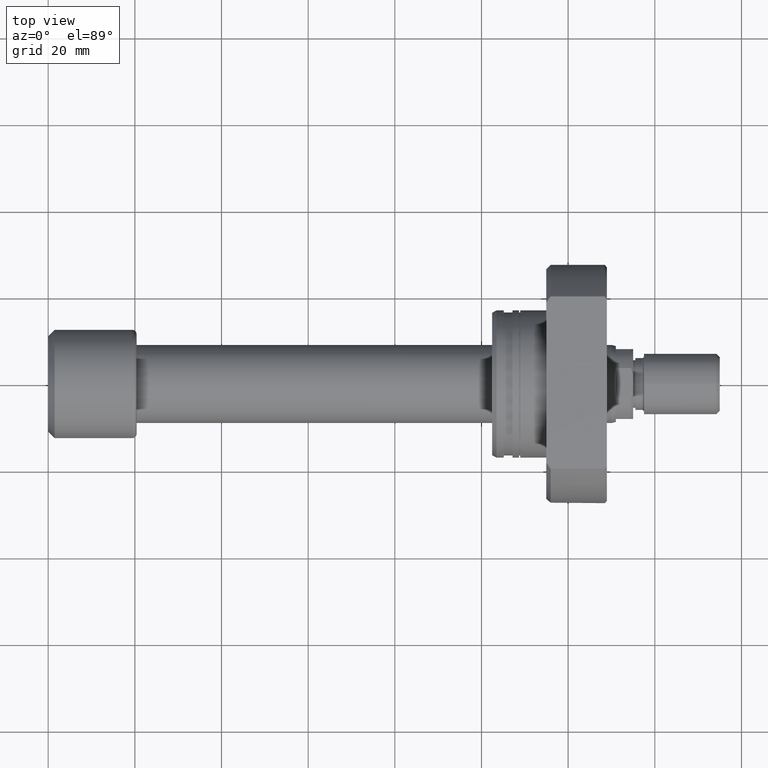
[diagram: clean part render]
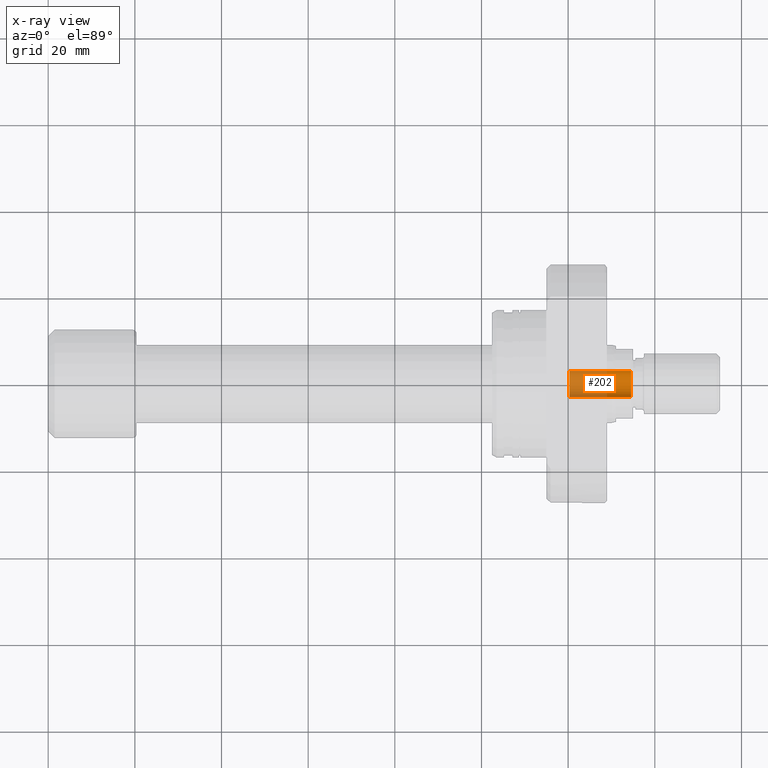
[diagram: x-ray — body ghosted, one internal face saturated and labeled with its STEP entity id]
A machine part, top view, then the same camera in x-ray: the body is ghosted and one INTERNAL B-rep face — a face not visible from any outside direction — is saturated and labeled: STEP entity #202.
In plain terms, the highlighted cylindrical surface (edge-blend (fillet) strip) has radius 3 mm, axis along (1, -0, 0).
Its self-contained STEP definition (entity closure, byte-faithful):
#91 = DIRECTION ( 'NONE',  ( 1.000000000000000000, -1.657264799492235042E-14, 0.000000000000000000 ) ) ;
#94 = AXIS2_PLACEMENT_3D ( 'NONE', #1503, #91, #1836 ) ;
#202 = ADVANCED_FACE ( 'NONE', ( #3683 ), #1076, .F. ) ;
#322 = CARTESIAN_POINT ( 'NONE',  ( 120.2999999999999261, -3.000000000002648548, 3.673940397442862041E-16 ) ) ;
#323 = LINE ( 'NONE', #2436, #2944 ) ;
#434 = DIRECTION ( 'NONE',  ( 1.000000000000000000, -1.657264799492230625E-14, 0.000000000000000000 ) ) ;
#634 = CARTESIAN_POINT ( 'NONE',  ( 134.5000000000001137, 2.999999999998425704, 0.000000000000000000 ) ) ;
#841 = DIRECTION ( 'NONE',  ( 1.000000000000000000, -1.657264799492230625E-14, -0.000000000000000000 ) ) ;
#901 = VERTEX_POINT ( 'NONE', #1640 ) ;
#981 = DIRECTION ( 'NONE',  ( 1.000000000000000000, -1.657264799492230625E-14, -0.000000000000000000 ) ) ;
#1076 = CYLINDRICAL_SURFACE ( 'NONE', #2221, 3.000000000000655032 ) ;
#1133 = LINE ( 'NONE', #322, #3357 ) ;
#1150 = EDGE_CURVE ( 'NONE', #2972, #3184, #1133, .T. ) ;
#1179 = CARTESIAN_POINT ( 'NONE',  ( 120.2999999999999261, -3.000000000002648548, 3.673940397442862041E-16 ) ) ;
#1247 = ORIENTED_EDGE ( 'NONE', *, *, #1150, .T. ) ;
#1355 = CARTESIAN_POINT ( 'NONE',  ( 120.2999999999999829, -1.993689553789153133E-12, 0.000000000000000000 ) ) ;
#1503 = CARTESIAN_POINT ( 'NONE',  ( 134.5000000000000568, -2.229021155317051935E-12, 0.000000000000000000 ) ) ;
#1511 = CIRCLE ( 'NONE', #2998, 3.000000000000655032 ) ;
#1640 = CARTESIAN_POINT ( 'NONE',  ( 120.3000000000000256, 2.999999999998661071, 0.000000000000000000 ) ) ;
#1672 = DIRECTION ( 'NONE',  ( 1.850371707708190232E-14, 1.000000000000000000, 0.000000000000000000 ) ) ;
#1751 = ORIENTED_EDGE ( 'NONE', *, *, #2223, .F. ) ;
#1836 = DIRECTION ( 'NONE',  ( -1.850371707708190232E-14, -1.000000000000000000, 0.000000000000000000 ) ) ;
#1913 = ORIENTED_EDGE ( 'NONE', *, *, #2556, .F. ) ;
#1936 = CIRCLE ( 'NONE', #94, 3.000000000000655032 ) ;
#1967 = DIRECTION ( 'NONE',  ( 1.000000000000000000, -1.657264799492230625E-14, -0.000000000000000000 ) ) ;
#2033 = CARTESIAN_POINT ( 'NONE',  ( 120.2999999999999829, -1.993689553789153133E-12, 0.000000000000000000 ) ) ;
#2221 = AXIS2_PLACEMENT_3D ( 'NONE', #1355, #841, #1672 ) ;
#2223 = EDGE_CURVE ( 'NONE', #2972, #901, #1511, .T. ) ;
#2436 = CARTESIAN_POINT ( 'NONE',  ( 120.3000000000000256, 2.999999999998661071, 0.000000000000000000 ) ) ;
#2508 = EDGE_LOOP ( 'NONE', ( #1751, #1247, #3036, #1913 ) ) ;
#2556 = EDGE_CURVE ( 'NONE', #901, #3505, #323, .T. ) ;
#2788 = DIRECTION ( 'NONE',  ( 1.850371707708190232E-14, 1.000000000000000000, 0.000000000000000000 ) ) ;
#2944 = VECTOR ( 'NONE', #981, 1000.000000000000000 ) ;
#2972 = VERTEX_POINT ( 'NONE', #1179 ) ;
#2998 = AXIS2_PLACEMENT_3D ( 'NONE', #2033, #434, #2788 ) ;
#3036 = ORIENTED_EDGE ( 'NONE', *, *, #3091, .T. ) ;
#3091 = EDGE_CURVE ( 'NONE', #3184, #3505, #1936, .T. ) ;
#3184 = VERTEX_POINT ( 'NONE', #3246 ) ;
#3246 = CARTESIAN_POINT ( 'NONE',  ( 134.5000000000000000, -3.000000000002883915, 3.673940397443006501E-16 ) ) ;
#3357 = VECTOR ( 'NONE', #1967, 1000.000000000000000 ) ;
#3505 = VERTEX_POINT ( 'NONE', #634 ) ;
#3683 = FACE_OUTER_BOUND ( 'NONE', #2508, .T. ) ;